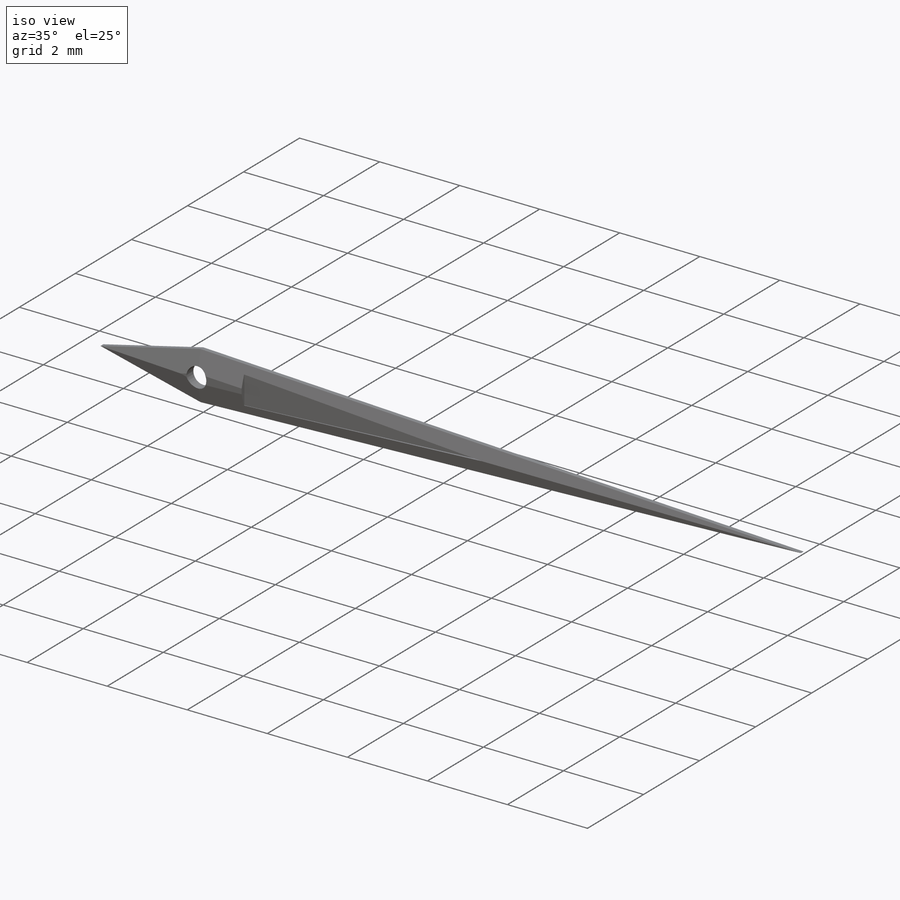
[diagram: iso view]
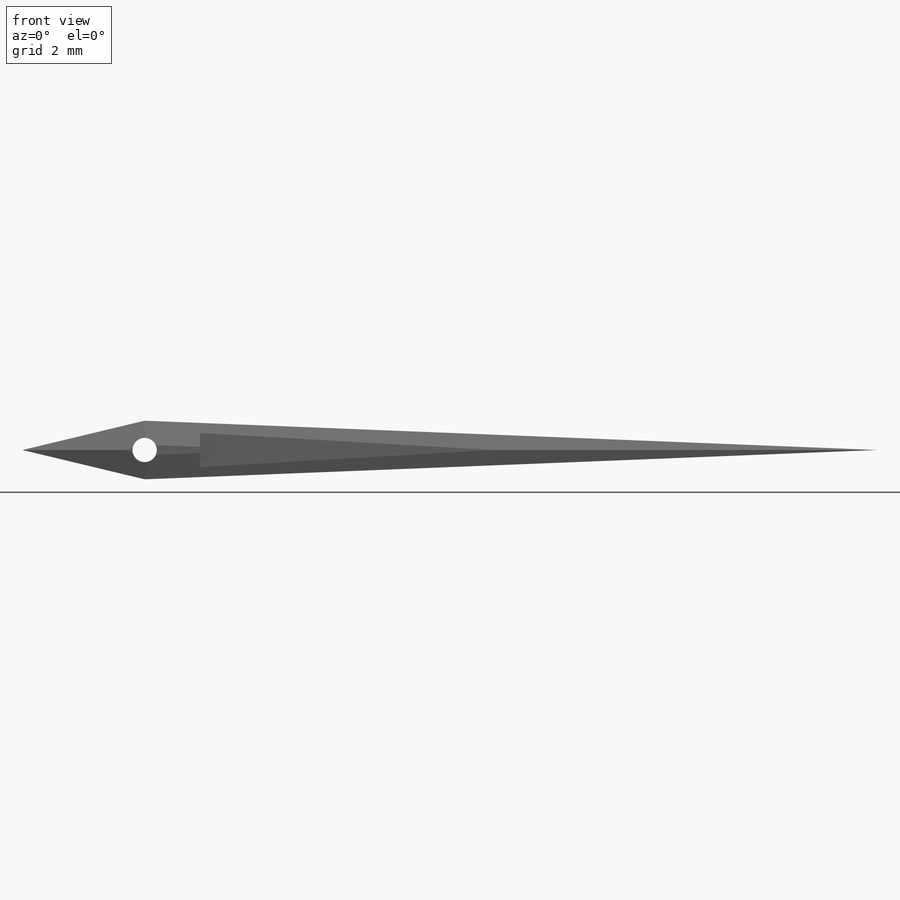
[diagram: front view]
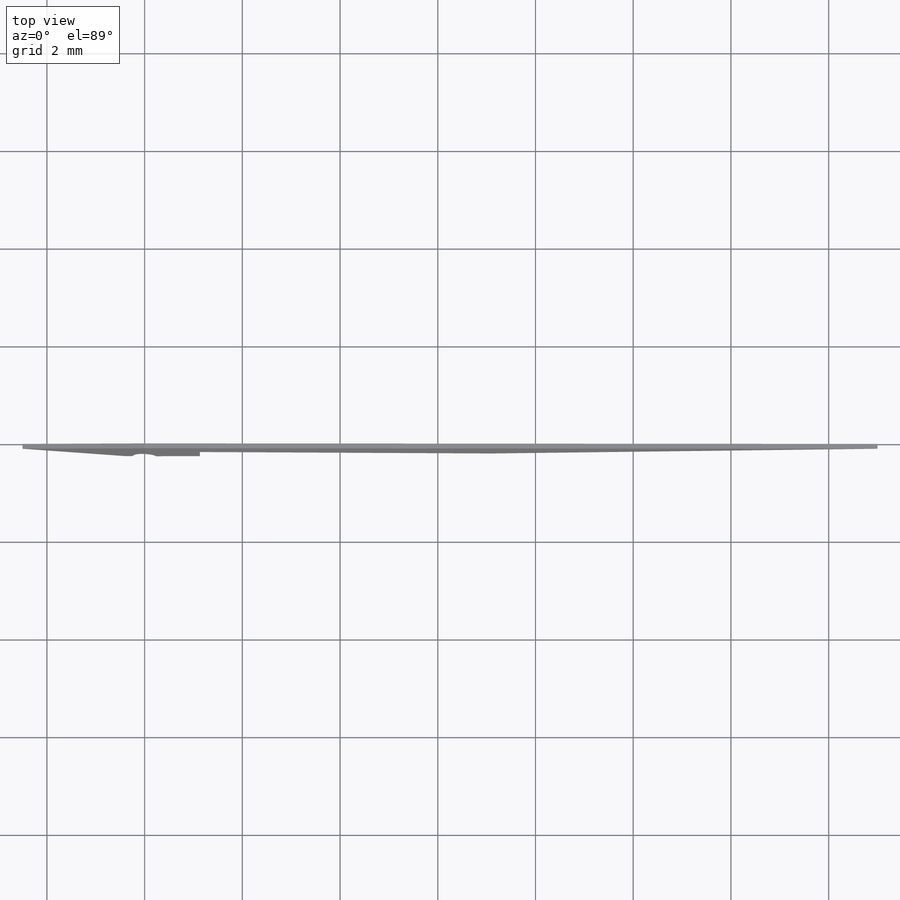
[diagram: top view]
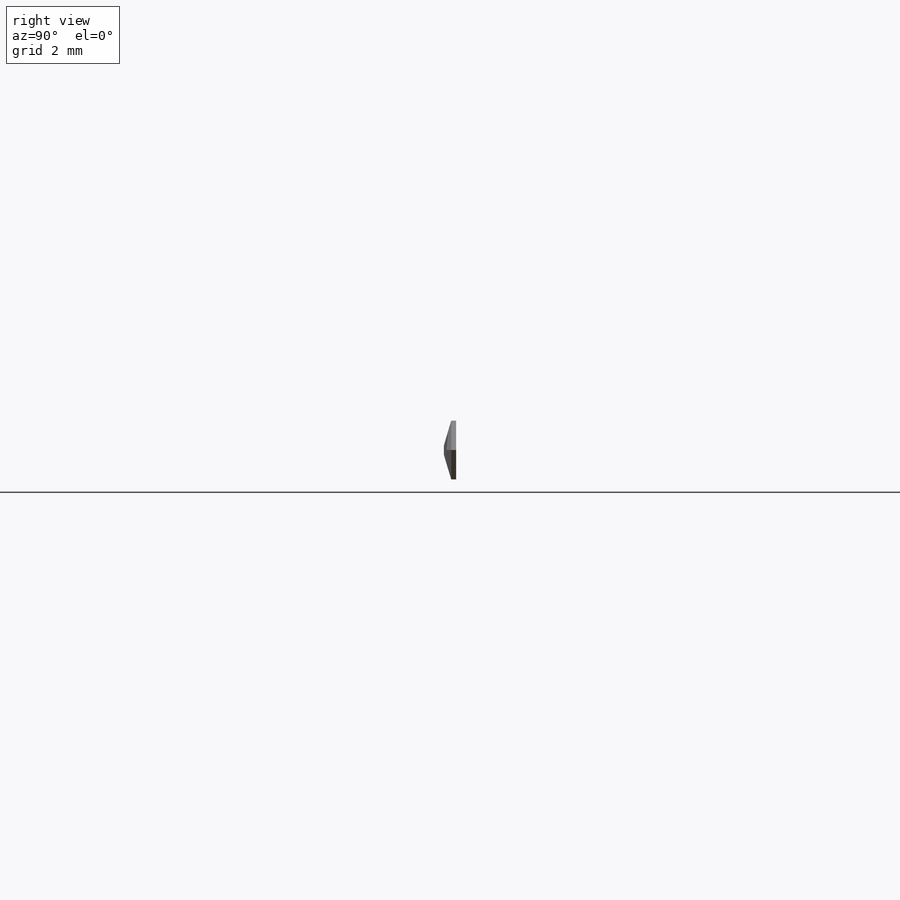
[diagram: right view]
SOLIDWORKS PART (.sldprt)
format: sldprt  version: not decoded by parser v0  size: 178,688 bytes
history: native  units: mm
features: sketch x3, cut_extrude x2, chamfer x2, material x1, extrude x1 (+11 scaffold rows collapsed)
feature tree (20):
  scaffold x11  (default folders/planes/origin — collapsed)
  material  "Material <not specified>"
  sketch  "Sketch1"  dims[D1=17.5mm D2=2.5mm D3=0.6mm D4=0.6mm]
  extrude  "Boss-Extrude1"  Depth=0.25mm
  sketch  "Sketch2"  dims[D1=0.5mm]
  cut_extrude  "Cut-Extrude1"  Depth=0.25mm
  chamfer  "Chamfer1"  Distance=0.15mm Angle=73deg
  chamfer  "Chamfer2"  Distance=0.15mm Angle=73deg
  sketch  "Sketch3"  dims[D1=0.35mm D2=0.35mm]
  cut_extrude  "Cut-Extrude2"  Depth=0.1mm
decode coverage: 8 of 8 modeling features carry decoded parameters
note: suppression state not decoded; provenance and decode notes live in map.json
